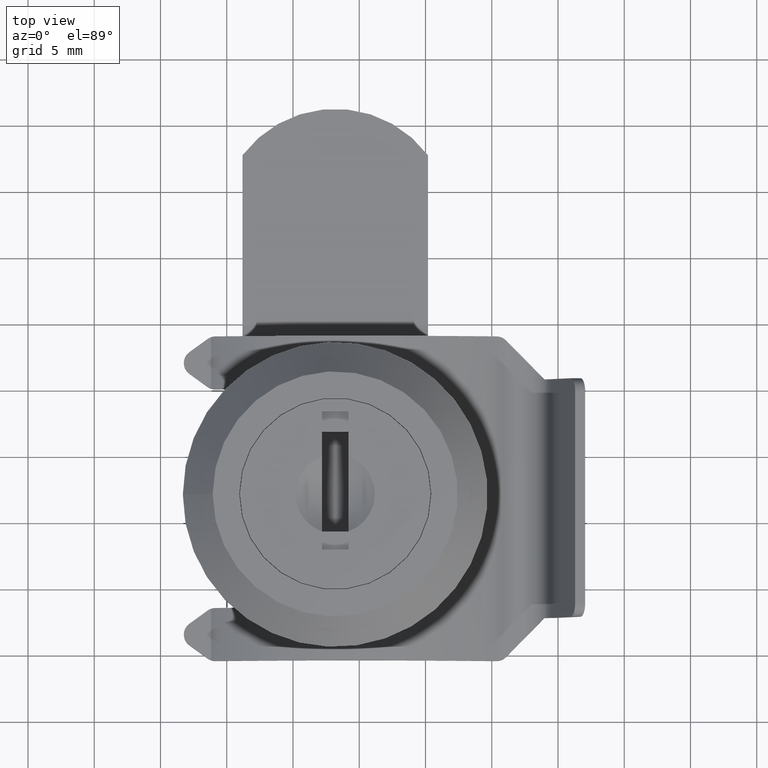
[diagram: clean part render]
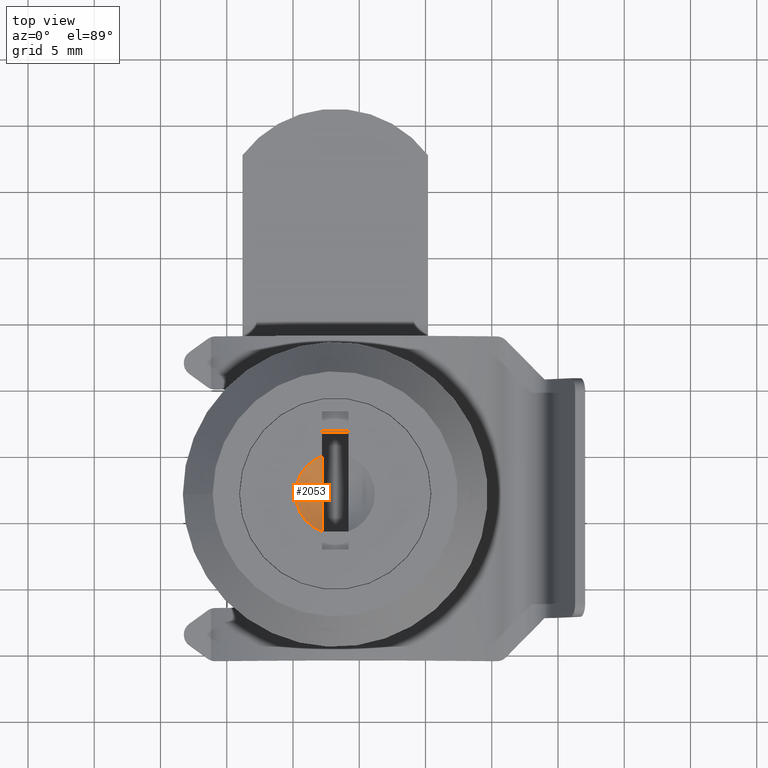
[diagram: same view with one face highlighted and labeled with its STEP entity id]
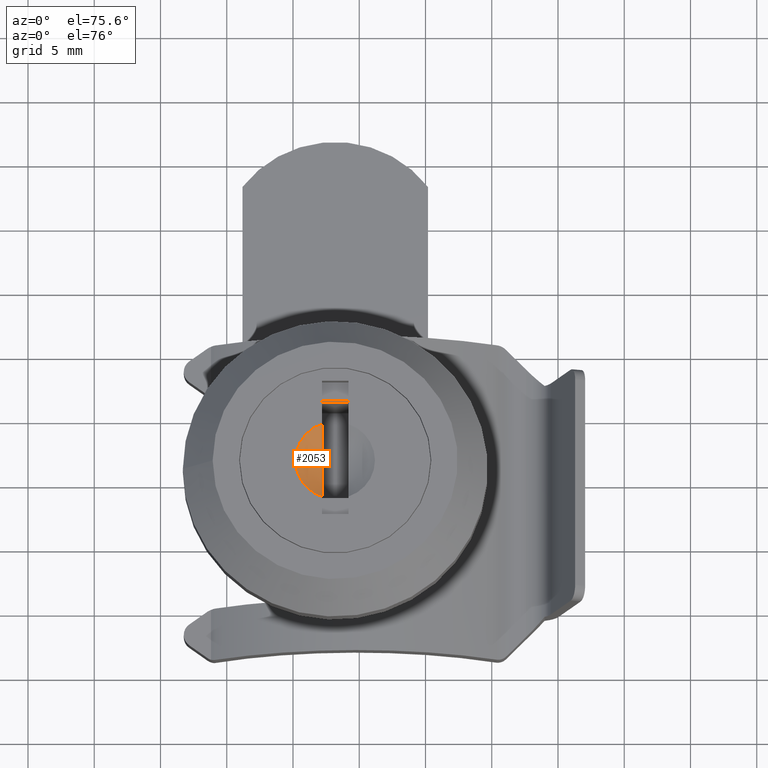
[diagram: same view with one face highlighted and labeled with its STEP entity id]
A machine part, top view. The second image highlights one B-rep face of the part: STEP entity #2053.
A second angle (auxiliary view) of the same face is appended — the face is thin or edge-on in the first view.
In plain terms, the highlighted spherical surface has radius 5 mm.
Its self-contained STEP definition (entity closure, byte-faithful):
#120=SPHERICAL_SURFACE('',#2188,5.);
#137=FACE_OUTER_BOUND('',#257,.T.);
#257=EDGE_LOOP('',(#1400,#1401));
#782=CIRCLE('',#2189,4.89897948556636);
#783=CIRCLE('',#2190,3.);
#877=VERTEX_POINT('',#3086);
#878=VERTEX_POINT('',#3087);
#1090=EDGE_CURVE('',#877,#878,#782,.T.);
#1091=EDGE_CURVE('',#877,#878,#783,.T.);
#1400=ORIENTED_EDGE('',*,*,#1090,.T.);
#1401=ORIENTED_EDGE('',*,*,#1091,.F.);
#2053=ADVANCED_FACE('',(#137),#120,.F.);
#2188=AXIS2_PLACEMENT_3D('',#3085,#2457,#2458);
#2189=AXIS2_PLACEMENT_3D('',#3088,#2459,#2460);
#2190=AXIS2_PLACEMENT_3D('',#3089,#2461,#2462);
#2457=DIRECTION('center_axis',(6.12323399573677E-17,0.,1.));
#2458=DIRECTION('ref_axis',(1.,0.,0.));
#2459=DIRECTION('center_axis',(1.,1.86816374335964E-16,0.));
#2460=DIRECTION('ref_axis',(0.,0.,-1.));
#2461=DIRECTION('center_axis',(0.,0.,-1.));
#2462=DIRECTION('ref_axis',(0.,1.,0.));
#3085=CARTESIAN_POINT('Origin',(0.,0.,4.));
#3086=CARTESIAN_POINT('',(-0.999999999999999,-2.8284271247462,0.));
#3087=CARTESIAN_POINT('',(-1.,2.8284271247462,0.));
#3088=CARTESIAN_POINT('Origin',(-0.999999999999999,-1.86816374335964E-16,
4.));
#3089=CARTESIAN_POINT('Origin',(0.,0.,0.));